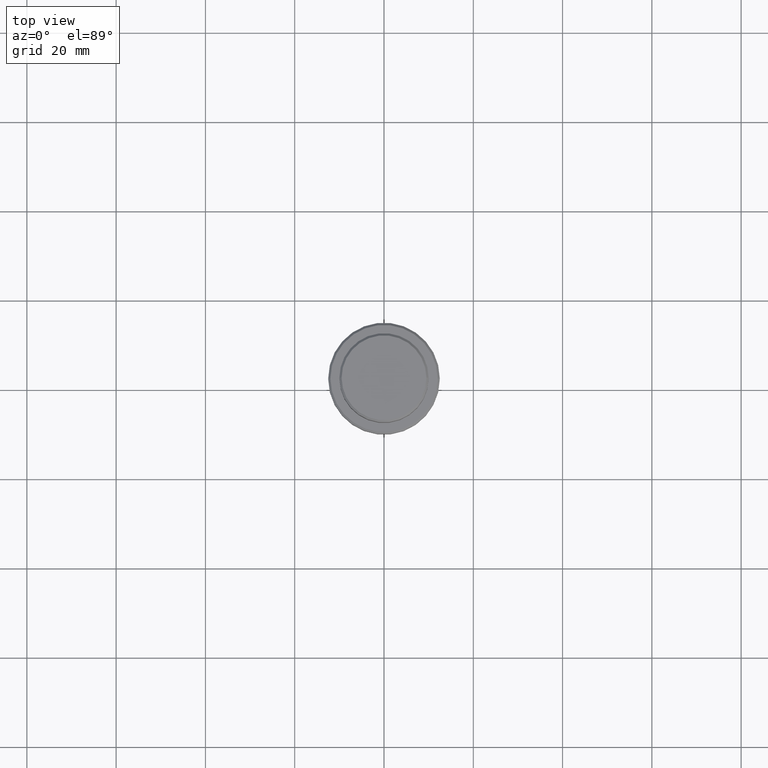
[diagram: clean part render]
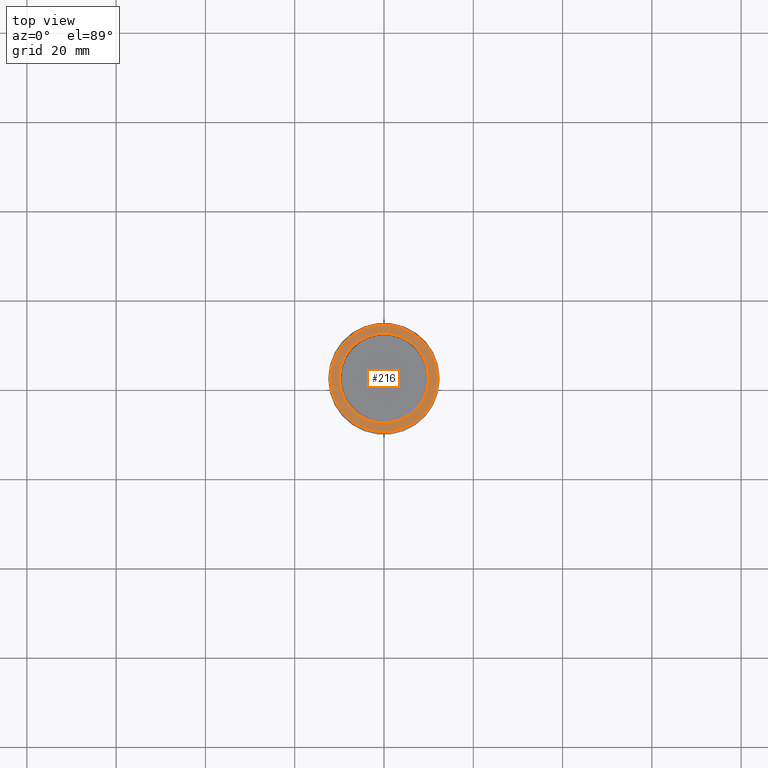
[diagram: same view with one face highlighted and labeled with its STEP entity id]
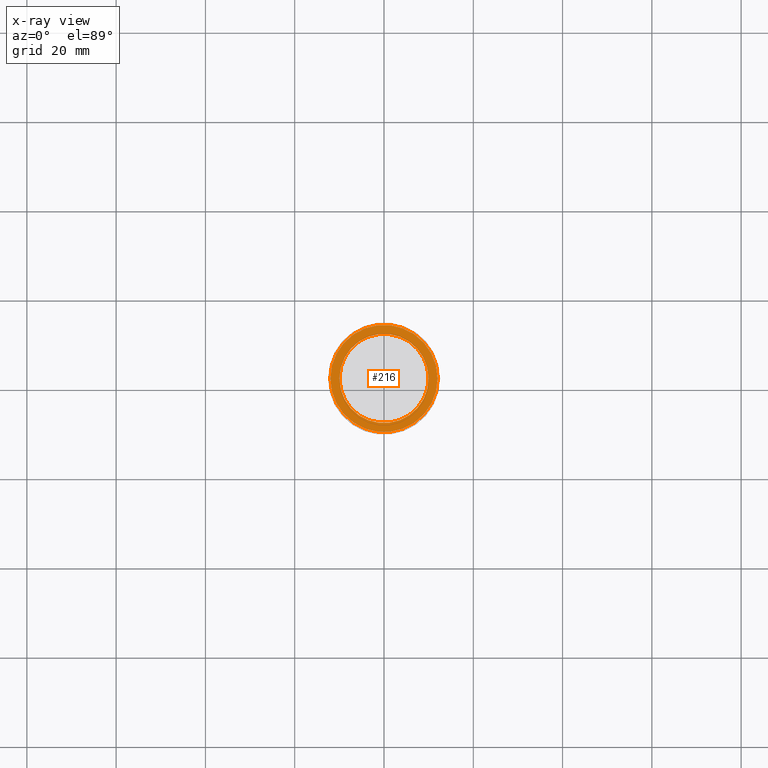
[diagram: x-ray of the same camera — body ghosted, the highlighted face saturated]
A machine part, top view. The second image highlights one B-rep face of the part: STEP entity #216.
The next image is the same camera in x-ray: the body ghosted, the highlighted face saturated — about 0% of this face is hidden behind the body in this view.
In plain terms, the highlighted planar face has unit normal (0, -0, 1).
Its self-contained STEP definition (entity closure, byte-faithful):
#17 = CIRCLE ( 'NONE', #903, 9.999999999999994671 ) ;
#33 = DIRECTION ( 'NONE',  ( -0.000000000000000000, -0.000000000000000000, 1.000000000000000000 ) ) ;
#42 = EDGE_CURVE ( 'NONE', #349, #672, #270, .T. ) ;
#108 = DIRECTION ( 'NONE',  ( 1.000000000000000000, 0.000000000000000000, 0.000000000000000000 ) ) ;
#147 = DIRECTION ( 'NONE',  ( 0.000000000000000000, 0.000000000000000000, -1.000000000000000000 ) ) ;
#167 = EDGE_LOOP ( 'NONE', ( #655, #363 ) ) ;
#216 = ADVANCED_FACE ( 'NONE', ( #1111, #1082 ), #1200, .T. ) ;
#231 = DIRECTION ( 'NONE',  ( 1.000000000000000000, 0.000000000000000000, 0.000000000000000000 ) ) ;
#270 = CIRCLE ( 'NONE', #1192, 12.00000000000002487 ) ;
#272 = AXIS2_PLACEMENT_3D ( 'NONE', #1038, #33, #231 ) ;
#349 = VERTEX_POINT ( 'NONE', #811 ) ;
#363 = ORIENTED_EDGE ( 'NONE', *, *, #444, .T. ) ;
#377 = CARTESIAN_POINT ( 'NONE',  ( -9.999999999999994671, 1.224646799147352665E-15, -9.000000000000001776 ) ) ;
#389 = EDGE_CURVE ( 'NONE', #580, #575, #404, .T. ) ;
#404 = CIRCLE ( 'NONE', #1256, 9.999999999999994671 ) ;
#433 = DIRECTION ( 'NONE',  ( 0.000000000000000000, -0.000000000000000000, 1.000000000000000000 ) ) ;
#444 = EDGE_CURVE ( 'NONE', #672, #349, #1193, .T. ) ;
#464 = ORIENTED_EDGE ( 'NONE', *, *, #389, .T. ) ;
#467 = DIRECTION ( 'NONE',  ( 1.000000000000000000, 0.000000000000000000, 0.000000000000000000 ) ) ;
#471 = CARTESIAN_POINT ( 'NONE',  ( 0.000000000000000000, 0.000000000000000000, -9.000000000000001776 ) ) ;
#557 = ORIENTED_EDGE ( 'NONE', *, *, #1376, .T. ) ;
#575 = VERTEX_POINT ( 'NONE', #377 ) ;
#580 = VERTEX_POINT ( 'NONE', #827 ) ;
#655 = ORIENTED_EDGE ( 'NONE', *, *, #42, .T. ) ;
#672 = VERTEX_POINT ( 'NONE', #1413 ) ;
#698 = CARTESIAN_POINT ( 'NONE',  ( 0.000000000000000000, 0.000000000000000000, -9.000000000000001776 ) ) ;
#731 = DIRECTION ( 'NONE',  ( -0.000000000000000000, -0.000000000000000000, 1.000000000000000000 ) ) ;
#732 = DIRECTION ( 'NONE',  ( 1.000000000000000000, 0.000000000000000000, 0.000000000000000000 ) ) ;
#805 = CARTESIAN_POINT ( 'NONE',  ( 0.000000000000000000, 0.000000000000000000, -9.000000000000001776 ) ) ;
#811 = CARTESIAN_POINT ( 'NONE',  ( -12.00000000000002487, 0.000000000000000000, -9.000000000000001776 ) ) ;
#827 = CARTESIAN_POINT ( 'NONE',  ( 9.999999999999994671, 0.000000000000000000, -9.000000000000001776 ) ) ;
#885 = EDGE_LOOP ( 'NONE', ( #464, #557 ) ) ;
#903 = AXIS2_PLACEMENT_3D ( 'NONE', #471, #147, #732 ) ;
#957 = DIRECTION ( 'NONE',  ( 1.000000000000000000, 0.000000000000000000, 0.000000000000000000 ) ) ;
#1038 = CARTESIAN_POINT ( 'NONE',  ( 0.000000000000000000, 0.000000000000000000, -9.000000000000001776 ) ) ;
#1082 = FACE_BOUND ( 'NONE', #885, .T. ) ;
#1111 = FACE_OUTER_BOUND ( 'NONE', #167, .T. ) ;
#1146 = DIRECTION ( 'NONE',  ( 0.000000000000000000, 0.000000000000000000, -1.000000000000000000 ) ) ;
#1192 = AXIS2_PLACEMENT_3D ( 'NONE', #805, #731, #957 ) ;
#1193 = CIRCLE ( 'NONE', #272, 12.00000000000002487 ) ;
#1200 = PLANE ( 'NONE',  #1231 ) ;
#1231 = AXIS2_PLACEMENT_3D ( 'NONE', #1289, #433, #108 ) ;
#1256 = AXIS2_PLACEMENT_3D ( 'NONE', #698, #1146, #467 ) ;
#1289 = CARTESIAN_POINT ( 'NONE',  ( 0.000000000000000000, 9.499999999999994671, -9.000000000000001776 ) ) ;
#1376 = EDGE_CURVE ( 'NONE', #575, #580, #17, .T. ) ;
#1413 = CARTESIAN_POINT ( 'NONE',  ( 12.00000000000002487, 1.500192328955509115E-15, -9.000000000000001776 ) ) ;